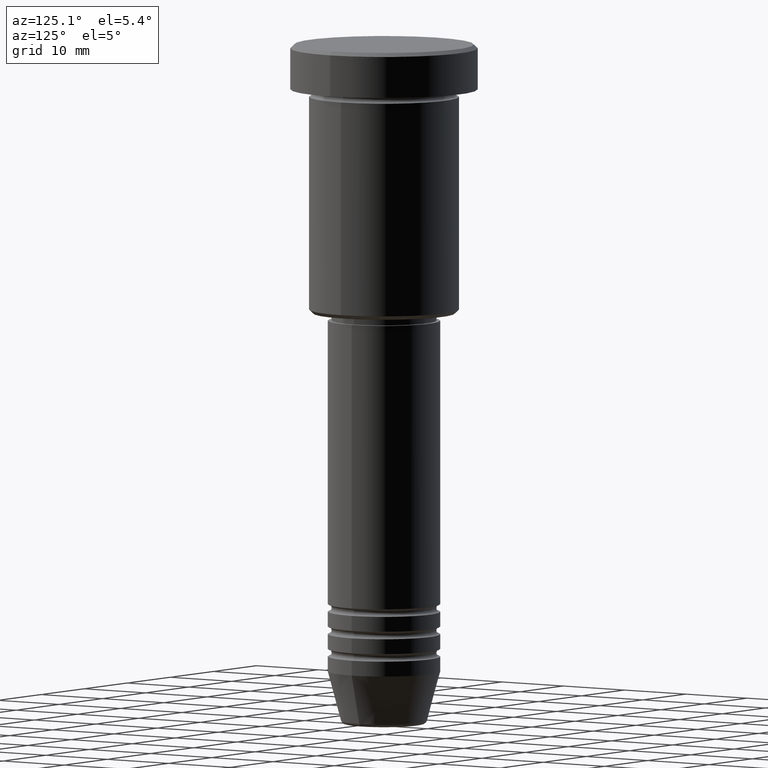
[diagram: clean part render]
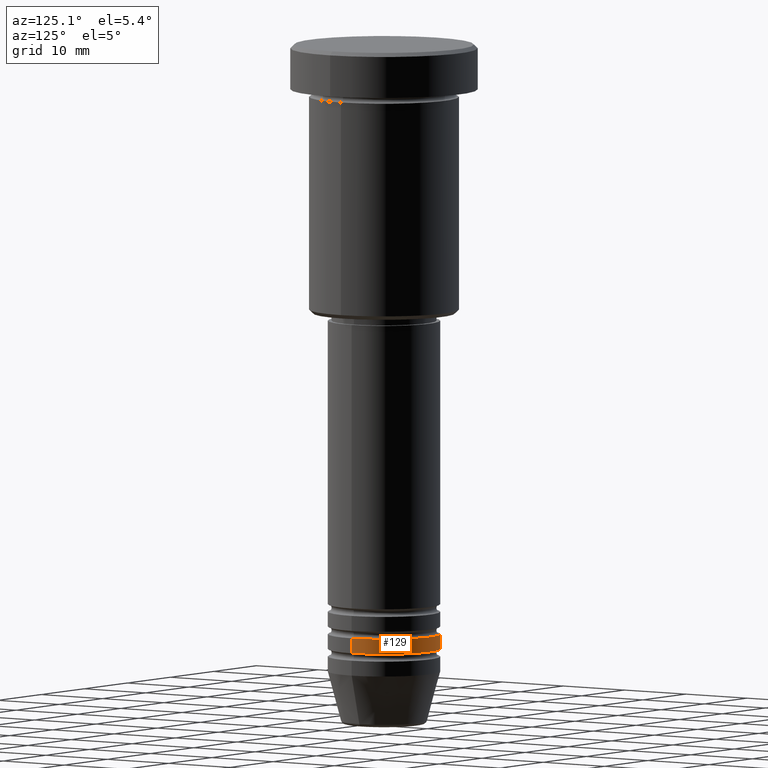
[diagram: same view with one face highlighted and labeled with its STEP entity id]
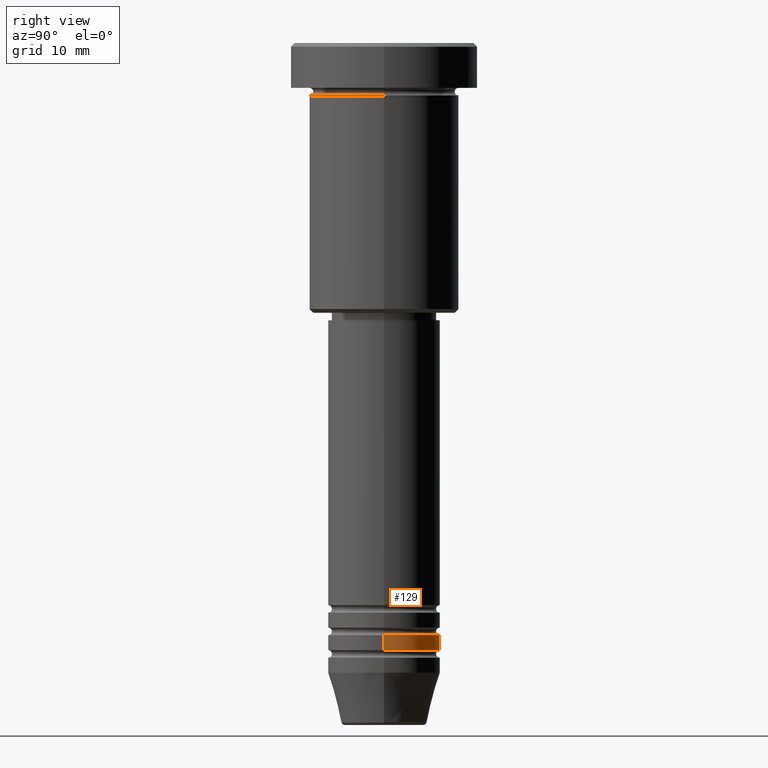
[diagram: same view with one face highlighted and labeled with its STEP entity id]
A machine part, auxiliary view. The second image highlights one B-rep face of the part: STEP entity #129.
A second angle (right view) of the same face is appended — the face is thin or edge-on in the first view.
In plain terms, the highlighted cylindrical surface (partial cylindrical patch) has radius 7.5 mm, axis along (-0, -0, 1).
Its self-contained STEP definition (entity closure, byte-faithful):
#2 = ORIENTED_EDGE ( 'NONE', *, *, #871, .T. ) ;
#4 = DIRECTION ( 'NONE',  ( 1.000000000000000000, 0.000000000000000000, 0.000000000000000000 ) ) ;
#41 = ORIENTED_EDGE ( 'NONE', *, *, #697, .F. ) ;
#62 = EDGE_CURVE ( 'NONE', #359, #541, #1029, .T. ) ;
#109 = AXIS2_PLACEMENT_3D ( 'NONE', #351, #675, #1043 ) ;
#129 = ADVANCED_FACE ( 'NONE', ( #1012 ), #632, .T. ) ;
#145 = VERTEX_POINT ( 'NONE', #388 ) ;
#197 = CARTESIAN_POINT ( 'NONE',  ( 0.000000000000000000, 0.000000000000000000, 0.000000000000000000 ) ) ;
#215 = DIRECTION ( 'NONE',  ( -0.000000000000000000, -0.000000000000000000, 1.000000000000000000 ) ) ;
#252 = DIRECTION ( 'NONE',  ( -0.000000000000000000, -0.000000000000000000, 1.000000000000000000 ) ) ;
#329 = CARTESIAN_POINT ( 'NONE',  ( -7.500000000000000000, 9.184850993605147944E-16, -78.99999999999997158 ) ) ;
#351 = CARTESIAN_POINT ( 'NONE',  ( 0.000000000000000000, 0.000000000000000000, -78.99999999999997158 ) ) ;
#359 = VERTEX_POINT ( 'NONE', #849 ) ;
#364 = EDGE_LOOP ( 'NONE', ( #2, #865, #41, #538 ) ) ;
#371 = DIRECTION ( 'NONE',  ( -0.000000000000000000, -0.000000000000000000, 1.000000000000000000 ) ) ;
#388 = CARTESIAN_POINT ( 'NONE',  ( 7.500000000000000000, 0.000000000000000000, -78.99999999999997158 ) ) ;
#423 = CIRCLE ( 'NONE', #592, 7.500000000000000000 ) ;
#475 = DIRECTION ( 'NONE',  ( -0.000000000000000000, -0.000000000000000000, 1.000000000000000000 ) ) ;
#514 = CIRCLE ( 'NONE', #109, 7.500000000000000000 ) ;
#538 = ORIENTED_EDGE ( 'NONE', *, *, #657, .F. ) ;
#540 = LINE ( 'NONE', #905, #625 ) ;
#541 = VERTEX_POINT ( 'NONE', #329 ) ;
#592 = AXIS2_PLACEMENT_3D ( 'NONE', #701, #252, #886 ) ;
#616 = CARTESIAN_POINT ( 'NONE',  ( 7.500000000000000000, 0.000000000000000000, -80.99999999999997158 ) ) ;
#617 = VERTEX_POINT ( 'NONE', #616 ) ;
#625 = VECTOR ( 'NONE', #371, 1000.000000000000000 ) ;
#632 = CYLINDRICAL_SURFACE ( 'NONE', #911, 7.500000000000000000 ) ;
#657 = EDGE_CURVE ( 'NONE', #617, #145, #540, .T. ) ;
#675 = DIRECTION ( 'NONE',  ( -0.000000000000000000, -0.000000000000000000, 1.000000000000000000 ) ) ;
#697 = EDGE_CURVE ( 'NONE', #145, #541, #514, .T. ) ;
#701 = CARTESIAN_POINT ( 'NONE',  ( 0.000000000000000000, 0.000000000000000000, -80.99999999999997158 ) ) ;
#738 = CARTESIAN_POINT ( 'NONE',  ( -7.500000000000000000, 9.184850993605147944E-16, 0.000000000000000000 ) ) ;
#838 = VECTOR ( 'NONE', #215, 1000.000000000000000 ) ;
#849 = CARTESIAN_POINT ( 'NONE',  ( -7.500000000000000000, 9.184850993605147944E-16, -80.99999999999997158 ) ) ;
#865 = ORIENTED_EDGE ( 'NONE', *, *, #62, .T. ) ;
#871 = EDGE_CURVE ( 'NONE', #617, #359, #423, .T. ) ;
#886 = DIRECTION ( 'NONE',  ( 1.000000000000000000, 0.000000000000000000, 0.000000000000000000 ) ) ;
#905 = CARTESIAN_POINT ( 'NONE',  ( 7.500000000000000000, 0.000000000000000000, 0.000000000000000000 ) ) ;
#911 = AXIS2_PLACEMENT_3D ( 'NONE', #197, #475, #4 ) ;
#1012 = FACE_OUTER_BOUND ( 'NONE', #364, .T. ) ;
#1029 = LINE ( 'NONE', #738, #838 ) ;
#1043 = DIRECTION ( 'NONE',  ( 1.000000000000000000, 0.000000000000000000, 0.000000000000000000 ) ) ;